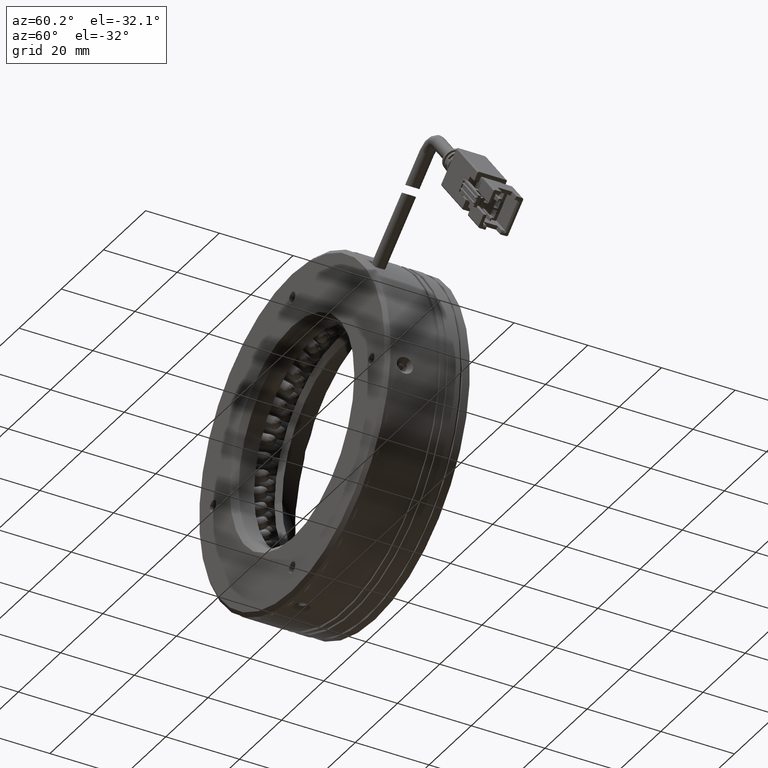
[diagram: clean part render]
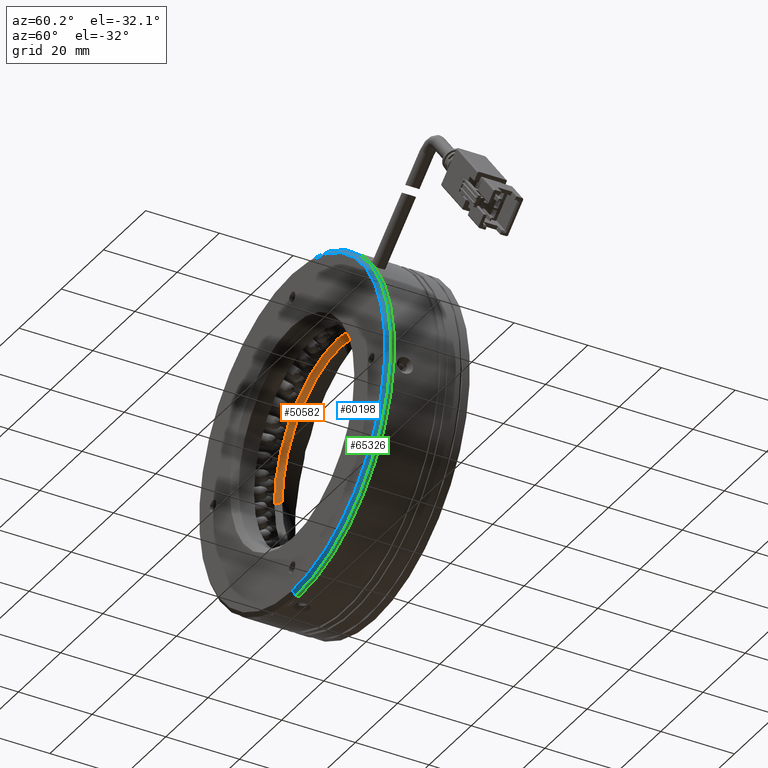
[diagram: same view with three faces highlighted in distinct colors, each labeled with its STEP entity id]
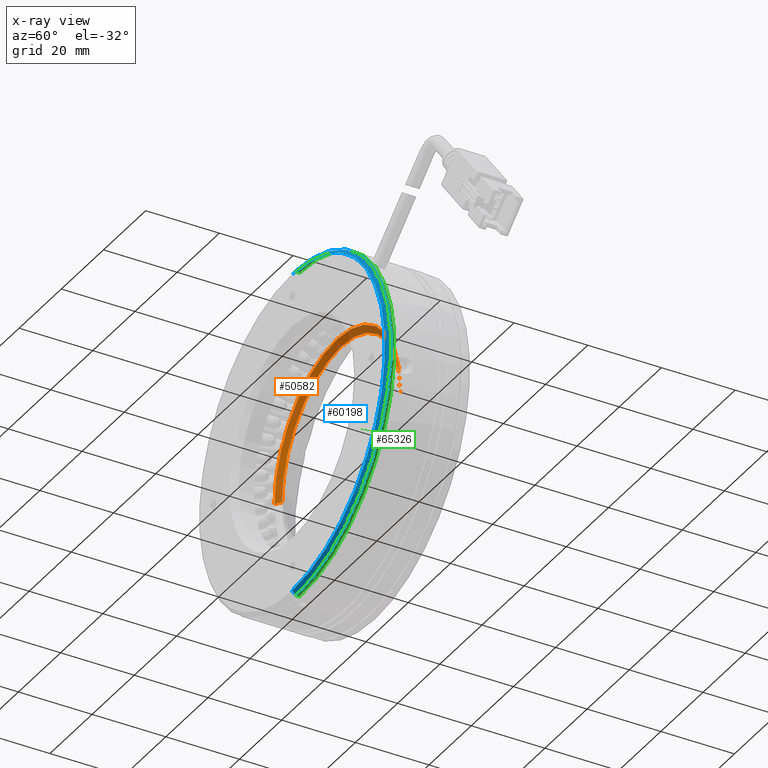
[diagram: x-ray of the same camera — body ghosted, the three highlighted faces saturated]
A machine part, auxiliary view with three faces highlighted in distinct colors.
The next image is the same camera in x-ray (body ghosted, the three faces saturated) — at least one of them is partly hidden behind the body in this view.
Their STEP definitions:

[orange] entity #50582 — the highlighted conical surface has half-angle 57.65 deg.
#1216 = DIRECTION ( 'NONE',  ( 1.166921775928612100E-016, -1.000000000000000000, 0.0000000000000000000 ) ) ;
#7226 = EDGE_CURVE ( 'NONE', #56107, #66029, #41871, .T. ) ;
#11849 = DIRECTION ( 'NONE',  ( -0.0000000000000000000, 1.000000000000000000, -0.0000000000000000000 ) ) ;
#16471 = FACE_OUTER_BOUND ( 'NONE', #94539, .T. ) ;
#17058 = ORIENTED_EDGE ( 'NONE', *, *, #90689, .F. ) ;
#17800 = LINE ( 'NONE', #126905, #45479 ) ;
#21417 = EDGE_CURVE ( 'NONE', #45600, #66056, #131720, .T. ) ;
#21652 = CARTESIAN_POINT ( 'NONE',  ( -53.99004085520083900, 29.80719313704832600, 24.20207763191681100 ) ) ;
#26151 = DIRECTION ( 'NONE',  ( -0.0000000000000000000, 1.000000000000000000, -0.0000000000000000000 ) ) ;
#27284 = DIRECTION ( 'NONE',  ( -0.0000000000000000000, 1.000000000000000000, -0.0000000000000000000 ) ) ;
#29038 = AXIS2_PLACEMENT_3D ( 'NONE', #88446, #26151, #98970 ) ;
#37315 = EDGE_CURVE ( 'NONE', #95137, #45600, #46383, .T. ) ;
#37671 = DIRECTION ( 'NONE',  ( -0.0000000000000000000, 1.000000000000000000, -0.0000000000000000000 ) ) ;
#37865 = EDGE_CURVE ( 'NONE', #66056, #43112, #75196, .T. ) ;
#41871 = CIRCLE ( 'NONE', #78183, 29.73161546490723900 ) ;
#42670 = ORIENTED_EDGE ( 'NONE', *, *, #61060, .F. ) ;
#43112 = VERTEX_POINT ( 'NONE', #75082 ) ;
#45479 = VECTOR ( 'NONE', #75013, 1000.000000000000000 ) ;
#45600 = VERTEX_POINT ( 'NONE', #21652 ) ;
#46383 = CIRCLE ( 'NONE', #58508, 27.99999999999999300 ) ;
#48381 = ORIENTED_EDGE ( 'NONE', *, *, #37865, .T. ) ;
#48961 = CARTESIAN_POINT ( 'NONE',  ( -24.25842539029359200, 28.71038147720938800, -3.797922368083184200 ) ) ;
#49556 = ORIENTED_EDGE ( 'NONE', *, *, #7226, .F. ) ;
#50582 = ADVANCED_FACE ( 'NONE', ( #16471 ), #110954, .F. ) ;
#56107 = VERTEX_POINT ( 'NONE', #66771 ) ;
#57501 = ORIENTED_EDGE ( 'NONE', *, *, #37315, .T. ) ;
#58508 = AXIS2_PLACEMENT_3D ( 'NONE', #89582, #27284, #100102 ) ;
#61060 = EDGE_CURVE ( 'NONE', #95137, #56107, #17800, .T. ) ;
#61677 = ORIENTED_EDGE ( 'NONE', *, *, #21417, .T. ) ;
#66029 = VERTEX_POINT ( 'NONE', #122964 ) ;
#66056 = VERTEX_POINT ( 'NONE', #81894 ) ;
#66771 = CARTESIAN_POINT ( 'NONE',  ( -83.72165632010808200, 28.71038147720938500, -3.797922368083180600 ) ) ;
#69861 = DIRECTION ( 'NONE',  ( 0.8447922000983552100, -0.5350945137571310200, 0.0000000000000000000 ) ) ;
#74190 = CARTESIAN_POINT ( 'NONE',  ( -53.99004085520083900, 28.71038147720938500, -3.797922368083184200 ) ) ;
#75013 = DIRECTION ( 'NONE',  ( -0.8447922000983550900, -0.5350945137571312400, 1.034572063795101000E-016 ) ) ;
#75082 = CARTESIAN_POINT ( 'NONE',  ( -24.25842539029358500, 28.71038147720938500, -3.797922368083184200 ) ) ;
#75196 = LINE ( 'NONE', #48961, #102922 ) ;
#78183 = AXIS2_PLACEMENT_3D ( 'NONE', #74190, #11849, #84611 ) ;
#81894 = CARTESIAN_POINT ( 'NONE',  ( -25.99004085520083500, 29.80719313704832600, -3.797922368083184200 ) ) ;
#84611 = DIRECTION ( 'NONE',  ( 0.0000000000000000000, 0.0000000000000000000, -1.000000000000000000 ) ) ;
#88446 = CARTESIAN_POINT ( 'NONE',  ( -53.99004085520083900, 28.71038147720938500, -3.797922368083184200 ) ) ;
#89582 = CARTESIAN_POINT ( 'NONE',  ( -53.99004085520083900, 29.80719313704832600, -3.797922368083184200 ) ) ;
#90689 = EDGE_CURVE ( 'NONE', #66029, #43112, #122046, .T. ) ;
#94539 = EDGE_LOOP ( 'NONE', ( #42670, #57501, #61677, #48381, #17058, #49556 ) ) ;
#95137 = VERTEX_POINT ( 'NONE', #103419 ) ;
#98970 = DIRECTION ( 'NONE',  ( 0.0000000000000000000, 0.0000000000000000000, -1.000000000000000000 ) ) ;
#100029 = CARTESIAN_POINT ( 'NONE',  ( -53.99004085520083900, 29.80719313704832600, -3.797922368083184200 ) ) ;
#100102 = DIRECTION ( 'NONE',  ( 0.0000000000000000000, 0.0000000000000000000, 1.000000000000000000 ) ) ;
#102922 = VECTOR ( 'NONE', #69861, 1000.000000000000100 ) ;
#103419 = CARTESIAN_POINT ( 'NONE',  ( -81.99004085520084600, 29.80719313704832600, -3.797922368083180600 ) ) ;
#110509 = DIRECTION ( 'NONE',  ( 0.0000000000000000000, 0.0000000000000000000, 1.000000000000000000 ) ) ;
#110954 = CONICAL_SURFACE ( 'NONE', #131279, 29.73161546490724300, 1.006176705511262900 ) ;
#116026 = DIRECTION ( 'NONE',  ( 1.000000000000000000, 1.166921775928611900E-016, 0.0000000000000000000 ) ) ;
#122046 = CIRCLE ( 'NONE', #29038, 29.73161546490723900 ) ;
#122964 = CARTESIAN_POINT ( 'NONE',  ( -53.99004085520083900, 28.71038147720938500, 25.93369309682406500 ) ) ;
#125976 = CARTESIAN_POINT ( 'NONE',  ( -53.99004085520083900, 28.71038147720938500, -3.797922368083184200 ) ) ;
#126905 = CARTESIAN_POINT ( 'NONE',  ( -83.72165632010808200, 28.71038147720938100, -3.797922368083180600 ) ) ;
#130310 = AXIS2_PLACEMENT_3D ( 'NONE', #100029, #37671, #110509 ) ;
#131279 = AXIS2_PLACEMENT_3D ( 'NONE', #125976, #1216, #116026 ) ;
#131720 = CIRCLE ( 'NONE', #130310, 27.99999999999999300 ) ;

[blue] entity #60198 — the highlighted conical surface has half-angle 45 deg.
#6495 = CARTESIAN_POINT ( 'NONE',  ( -53.99004085520083900, 17.47876601230222700, -3.797922368083179700 ) ) ;
#7492 = VERTEX_POINT ( 'NONE', #46840 ) ;
#14306 = AXIS2_PLACEMENT_3D ( 'NONE', #123982, #61661, #134382 ) ;
#14749 = VERTEX_POINT ( 'NONE', #130228 ) ;
#15028 = AXIS2_PLACEMENT_3D ( 'NONE', #121659, #59356, #132046 ) ;
#15548 = CARTESIAN_POINT ( 'NONE',  ( -53.99004085520083900, 17.47876601230222700, 41.20207763191682200 ) ) ;
#15755 = CONICAL_SURFACE ( 'NONE', #103797, 45.00000000000000000, 0.7853981633974482800 ) ;
#16840 = VERTEX_POINT ( 'NONE', #118871 ) ;
#19635 = CIRCLE ( 'NONE', #14306, 44.99999999999999300 ) ;
#20234 = ORIENTED_EDGE ( 'NONE', *, *, #87329, .T. ) ;
#30095 = VERTEX_POINT ( 'NONE', #60737 ) ;
#34281 = ORIENTED_EDGE ( 'NONE', *, *, #86295, .T. ) ;
#35733 = ORIENTED_EDGE ( 'NONE', *, *, #77777, .F. ) ;
#42917 = LINE ( 'NONE', #15548, #95014 ) ;
#46840 = CARTESIAN_POINT ( 'NONE',  ( -53.99004085520083900, 16.47876601230221300, -47.79792236808316400 ) ) ;
#47175 = DIRECTION ( 'NONE',  ( 2.698596413362739200E-017, 0.7071067811865475700, -0.7071067811865474600 ) ) ;
#48398 = DIRECTION ( 'NONE',  ( 0.0000000000000000000, 0.0000000000000000000, -1.000000000000000000 ) ) ;
#59356 = DIRECTION ( 'NONE',  ( 9.367506770274758300E-017, 1.000000000000000000, -5.200010849845536800E-033 ) ) ;
#60198 = ADVANCED_FACE ( 'NONE', ( #84180 ), #15755, .T. ) ;
#60597 = LINE ( 'NONE', #109555, #116010 ) ;
#60737 = CARTESIAN_POINT ( 'NONE',  ( -53.99004085520083900, 16.47876601230221300, 40.20207763191680800 ) ) ;
#61661 = DIRECTION ( 'NONE',  ( -9.367506770274758300E-017, -1.000000000000000000, 5.200010849845536800E-033 ) ) ;
#67461 = DIRECTION ( 'NONE',  ( 1.889498144426681600E-017, 0.7071067811865475700, 0.7071067811865474600 ) ) ;
#68174 = EDGE_LOOP ( 'NONE', ( #35733, #34281, #20234, #98571 ) ) ;
#77777 = EDGE_CURVE ( 'NONE', #30095, #16840, #42917, .T. ) ;
#84180 = FACE_OUTER_BOUND ( 'NONE', #68174, .T. ) ;
#86295 = EDGE_CURVE ( 'NONE', #30095, #7492, #122825, .T. ) ;
#87329 = EDGE_CURVE ( 'NONE', #7492, #14749, #60597, .T. ) ;
#95014 = VECTOR ( 'NONE', #67461, 1000.000000000000000 ) ;
#98571 = ORIENTED_EDGE ( 'NONE', *, *, #124210, .T. ) ;
#103797 = AXIS2_PLACEMENT_3D ( 'NONE', #6495, #120784, #48398 ) ;
#109555 = CARTESIAN_POINT ( 'NONE',  ( -53.99004085520083900, 17.47876601230222700, -48.79792236808317800 ) ) ;
#116010 = VECTOR ( 'NONE', #47175, 1000.000000000000000 ) ;
#118871 = CARTESIAN_POINT ( 'NONE',  ( -53.99004085520083900, 17.47876601230222700, 41.20207763191682200 ) ) ;
#120784 = DIRECTION ( 'NONE',  ( 9.367506770274758300E-017, 1.000000000000000000, -5.200010849845536800E-033 ) ) ;
#121659 = CARTESIAN_POINT ( 'NONE',  ( -53.99004085520083900, 16.47876601230221300, -3.797922368083179700 ) ) ;
#122825 = CIRCLE ( 'NONE', #15028, 43.99999999999998600 ) ;
#123982 = CARTESIAN_POINT ( 'NONE',  ( -53.99004085520083900, 17.47876601230222700, -3.797922368083179700 ) ) ;
#124210 = EDGE_CURVE ( 'NONE', #14749, #16840, #19635, .T. ) ;
#130228 = CARTESIAN_POINT ( 'NONE',  ( -53.99004085520084600, 17.47876601230222700, -48.79792236808317800 ) ) ;
#132046 = DIRECTION ( 'NONE',  ( 0.0000000000000000000, 0.0000000000000000000, -1.000000000000000000 ) ) ;
#134382 = DIRECTION ( 'NONE',  ( 0.0000000000000000000, 0.0000000000000000000, -1.000000000000000000 ) ) ;

[green] entity #65326 — the highlighted cylindrical surface (partial cylindrical patch) has radius 45 mm, axis along (-0, -1, 0).
#482 = CIRCLE ( 'NONE', #64736, 45.00000000000000000 ) ;
#9020 = ORIENTED_EDGE ( 'NONE', *, *, #124210, .F. ) ;
#9490 = DIRECTION ( 'NONE',  ( -9.367506770274758300E-017, -1.000000000000000000, 5.200010849845536800E-033 ) ) ;
#14306 = AXIS2_PLACEMENT_3D ( 'NONE', #123982, #61661, #134382 ) ;
#14749 = VERTEX_POINT ( 'NONE', #130228 ) ;
#16591 = AXIS2_PLACEMENT_3D ( 'NONE', #35750, #128963, #77532 ) ;
#16840 = VERTEX_POINT ( 'NONE', #118871 ) ;
#17032 = ORIENTED_EDGE ( 'NONE', *, *, #46681, .F. ) ;
#18197 = CARTESIAN_POINT ( 'NONE',  ( -53.99004085520083900, 18.47876601230220900, -3.797922368083179700 ) ) ;
#19393 = VERTEX_POINT ( 'NONE', #70131 ) ;
#19635 = CIRCLE ( 'NONE', #14306, 44.99999999999999300 ) ;
#24336 = FACE_OUTER_BOUND ( 'NONE', #40817, .T. ) ;
#27223 = VERTEX_POINT ( 'NONE', #58378 ) ;
#28680 = DIRECTION ( 'NONE',  ( 0.0000000000000000000, 0.0000000000000000000, 1.000000000000000000 ) ) ;
#35750 = CARTESIAN_POINT ( 'NONE',  ( -53.99004085520083900, -6.436818150555594400, -3.797922368083179700 ) ) ;
#36364 = ORIENTED_EDGE ( 'NONE', *, *, #97089, .T. ) ;
#37738 = DIRECTION ( 'NONE',  ( -9.367506770274758300E-017, -1.000000000000000000, 5.200010849845536800E-033 ) ) ;
#40817 = EDGE_LOOP ( 'NONE', ( #17032, #36364, #72520, #9020 ) ) ;
#44889 = EDGE_CURVE ( 'NONE', #27223, #16840, #87294, .T. ) ;
#46681 = EDGE_CURVE ( 'NONE', #19393, #14749, #66869, .T. ) ;
#48241 = CARTESIAN_POINT ( 'NONE',  ( -53.99004085520083900, -6.436818150555594400, 41.20207763191682200 ) ) ;
#58378 = CARTESIAN_POINT ( 'NONE',  ( -53.99004085520083900, 18.47876601230220900, 41.20207763191682200 ) ) ;
#61661 = DIRECTION ( 'NONE',  ( -9.367506770274758300E-017, -1.000000000000000000, 5.200010849845536800E-033 ) ) ;
#64736 = AXIS2_PLACEMENT_3D ( 'NONE', #18197, #90945, #28680 ) ;
#65326 = ADVANCED_FACE ( 'NONE', ( #24336 ), #94306, .T. ) ;
#66869 = LINE ( 'NONE', #71839, #122268 ) ;
#70131 = CARTESIAN_POINT ( 'NONE',  ( -53.99004085520084600, 18.47876601230220900, -48.79792236808317800 ) ) ;
#71839 = CARTESIAN_POINT ( 'NONE',  ( -53.99004085520084600, -6.436818150555594400, -48.79792236808317800 ) ) ;
#72520 = ORIENTED_EDGE ( 'NONE', *, *, #44889, .T. ) ;
#77532 = DIRECTION ( 'NONE',  ( 0.0000000000000000000, 0.0000000000000000000, 1.000000000000000000 ) ) ;
#87294 = LINE ( 'NONE', #48241, #111824 ) ;
#90945 = DIRECTION ( 'NONE',  ( -9.367506770274758300E-017, -1.000000000000000000, 5.200010849845536800E-033 ) ) ;
#94306 = CYLINDRICAL_SURFACE ( 'NONE', #16591, 45.00000000000000000 ) ;
#97089 = EDGE_CURVE ( 'NONE', #19393, #27223, #482, .T. ) ;
#111824 = VECTOR ( 'NONE', #37738, 1000.000000000000000 ) ;
#118871 = CARTESIAN_POINT ( 'NONE',  ( -53.99004085520083900, 17.47876601230222700, 41.20207763191682200 ) ) ;
#122268 = VECTOR ( 'NONE', #9490, 1000.000000000000000 ) ;
#123982 = CARTESIAN_POINT ( 'NONE',  ( -53.99004085520083900, 17.47876601230222700, -3.797922368083179700 ) ) ;
#124210 = EDGE_CURVE ( 'NONE', #14749, #16840, #19635, .T. ) ;
#128963 = DIRECTION ( 'NONE',  ( -9.367506770274758300E-017, -1.000000000000000000, 5.200010849845536800E-033 ) ) ;
#130228 = CARTESIAN_POINT ( 'NONE',  ( -53.99004085520084600, 17.47876601230222700, -48.79792236808317800 ) ) ;
#134382 = DIRECTION ( 'NONE',  ( 0.0000000000000000000, 0.0000000000000000000, -1.000000000000000000 ) ) ;